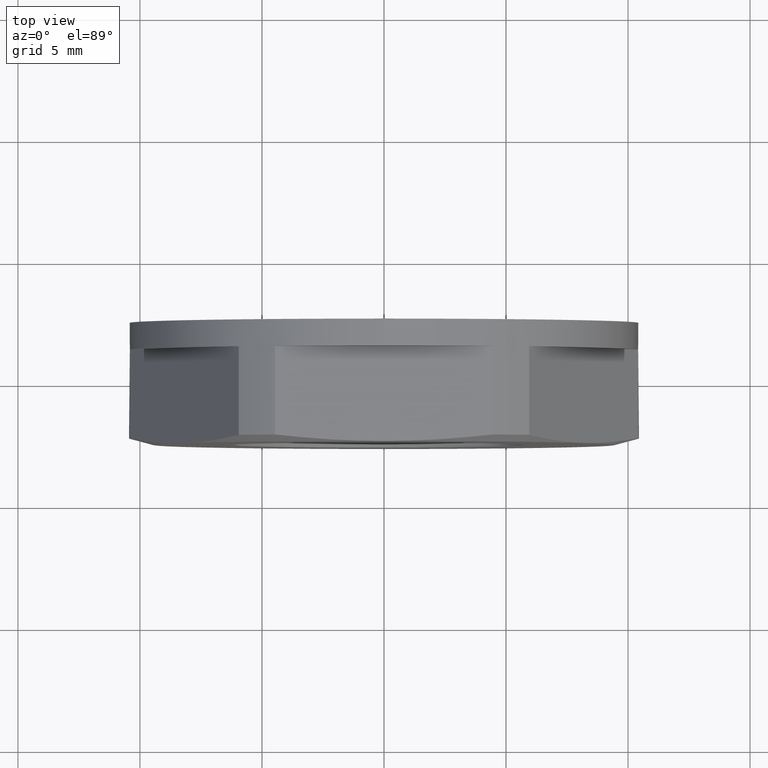
[diagram: clean part render]
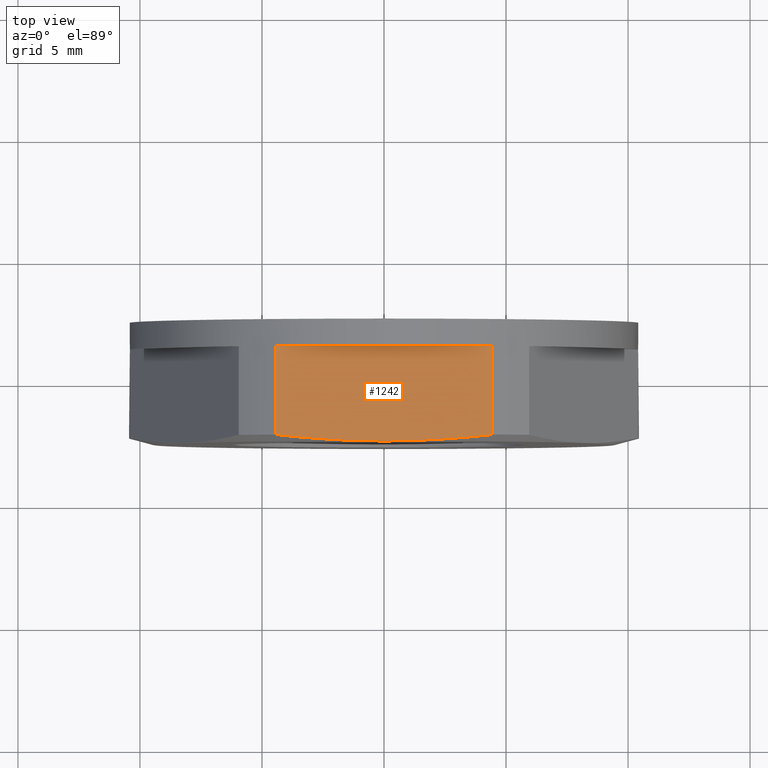
[diagram: same view with one face highlighted and labeled with its STEP entity id]
A machine part, top view. The second image highlights one B-rep face of the part: STEP entity #1242.
In plain terms, the highlighted planar face has unit normal (0, 0, -1).
Its self-contained STEP definition (entity closure, byte-faithful):
#199 = EDGE_LOOP ( 'NONE', ( #1471, #351, #1750, #531, #1604 ) ) ;
#226 = VERTEX_POINT ( 'NONE', #1411 ) ;
#299 = CARTESIAN_POINT ( 'NONE',  ( 0.0000000000000000000, 2.409999999999999698, 9.449999999999999289 ) ) ;
#336 = CARTESIAN_POINT ( 'NONE',  ( 4.460941604639105051, 34.48836049169644724, 9.449999999999999289 ) ) ;
#348 = B_SPLINE_CURVE_WITH_KNOTS ( 'NONE', 3,
 ( #299, #1666, #973, #1834, #1138, #643 ),
 .UNSPECIFIED., .F., .F.,
 ( 4, 2, 4 ),
 ( 0.02329190791741629976, 0.02552634913787470844, 0.02776079035833311712 ),
 .UNSPECIFIED. ) ;
#351 = ORIENTED_EDGE ( 'NONE', *, *, #759, .F. ) ;
#466 = VECTOR ( 'NONE', #1006, 1000.000000000000000 ) ;
#470 = CARTESIAN_POINT ( 'NONE',  ( 4.460941604639105051, 2.677949192431114955, 9.449999999999999289 ) ) ;
#488 = FACE_OUTER_BOUND ( 'NONE', #199, .T. ) ;
#531 = ORIENTED_EDGE ( 'NONE', *, *, #2116, .T. ) ;
#535 = CARTESIAN_POINT ( 'NONE',  ( 1.490880979971979547, 2.410000000000000142, 9.449999999999999289 ) ) ;
#555 = EDGE_CURVE ( 'NONE', #1703, #226, #1782, .T. ) ;
#643 = CARTESIAN_POINT ( 'NONE',  ( -4.460941604639105051, 2.677949192431114955, 9.449999999999999289 ) ) ;
#715 = CARTESIAN_POINT ( 'NONE',  ( 4.460941604639105051, 6.309999999999999609, 9.449999999999999289 ) ) ;
#759 = EDGE_CURVE ( 'NONE', #1703, #1992, #1856, .T. ) ;
#884 = EDGE_CURVE ( 'NONE', #1078, #1615, #348, .T. ) ;
#894 = CARTESIAN_POINT ( 'NONE',  ( 0.0000000000000000000, 2.409999999999999698, 9.449999999999999289 ) ) ;
#973 = CARTESIAN_POINT ( 'NONE',  ( -1.485064377453213069, 2.433721300150043287, 9.449999999999999289 ) ) ;
#1002 = CARTESIAN_POINT ( 'NONE',  ( -4.460941604639105051, 34.48836049169644724, 9.449999999999999289 ) ) ;
#1006 = DIRECTION ( 'NONE',  ( 0.0000000000000000000, -1.000000000000000000, 0.0000000000000000000 ) ) ;
#1015 = CARTESIAN_POINT ( 'NONE',  ( 4.460941604639105051, 2.677949192431114955, 9.449999999999999289 ) ) ;
#1028 = CARTESIAN_POINT ( 'NONE',  ( 2.977470735327108375, 2.508264868360941424, 9.449999999999999289 ) ) ;
#1078 = VERTEX_POINT ( 'NONE', #894 ) ;
#1129 = CARTESIAN_POINT ( 'NONE',  ( -4.460941604639105051, 34.48836049169644724, 9.449999999999999289 ) ) ;
#1138 = CARTESIAN_POINT ( 'NONE',  ( -3.719023987172681345, 2.593086191721213130, 9.450000000000001066 ) ) ;
#1141 = DIRECTION ( 'NONE',  ( 0.0000000000000000000, -1.000000000000000000, 0.0000000000000000000 ) ) ;
#1180 = DIRECTION ( 'NONE',  ( -1.000000000000000000, 0.0000000000000000000, 0.0000000000000000000 ) ) ;
#1205 = CARTESIAN_POINT ( 'NONE',  ( 0.0000000000000000000, 2.409999999999999698, 9.449999999999999289 ) ) ;
#1242 = ADVANCED_FACE ( 'NONE', ( #488 ), #2033, .F. ) ;
#1411 = CARTESIAN_POINT ( 'NONE',  ( -4.460941604639105051, 6.309999999999999609, 9.449999999999999289 ) ) ;
#1471 = ORIENTED_EDGE ( 'NONE', *, *, #1552, .F. ) ;
#1552 = EDGE_CURVE ( 'NONE', #1992, #1078, #1715, .T. ) ;
#1561 = VECTOR ( 'NONE', #1141, 1000.000000000000000 ) ;
#1601 = CARTESIAN_POINT ( 'NONE',  ( -4.460941604639105051, 6.309999999999999609, 9.449999999999999289 ) ) ;
#1604 = ORIENTED_EDGE ( 'NONE', *, *, #884, .F. ) ;
#1615 = VERTEX_POINT ( 'NONE', #1723 ) ;
#1644 = VECTOR ( 'NONE', #2117, 1000.000000000000000 ) ;
#1666 = CARTESIAN_POINT ( 'NONE',  ( -0.7420142344014981628, 2.409999999999999698, 9.449999999999997513 ) ) ;
#1681 = AXIS2_PLACEMENT_3D ( 'NONE', #1002, #1695, #1180 ) ;
#1695 = DIRECTION ( 'NONE',  ( 0.0000000000000000000, 0.0000000000000000000, -1.000000000000000000 ) ) ;
#1703 = VERTEX_POINT ( 'NONE', #715 ) ;
#1709 = LINE ( 'NONE', #1129, #1561 ) ;
#1715 = B_SPLINE_CURVE_WITH_KNOTS ( 'NONE', 3,
 ( #1015, #1028, #535, #1205 ),
 .UNSPECIFIED., .F., .F.,
 ( 4, 4 ),
 ( 0.01880239038257573020, 0.02329190791741629976 ),
 .UNSPECIFIED. ) ;
#1723 = CARTESIAN_POINT ( 'NONE',  ( -4.460941604639105051, 2.677949192431114955, 9.449999999999999289 ) ) ;
#1750 = ORIENTED_EDGE ( 'NONE', *, *, #555, .T. ) ;
#1782 = LINE ( 'NONE', #1601, #1644 ) ;
#1834 = CARTESIAN_POINT ( 'NONE',  ( -2.973090280553778886, 2.525258656057692619, 9.449999999999999289 ) ) ;
#1856 = LINE ( 'NONE', #336, #466 ) ;
#1992 = VERTEX_POINT ( 'NONE', #470 ) ;
#2033 = PLANE ( 'NONE',  #1681 ) ;
#2116 = EDGE_CURVE ( 'NONE', #226, #1615, #1709, .T. ) ;
#2117 = DIRECTION ( 'NONE',  ( -1.000000000000000000, 0.0000000000000000000, 0.0000000000000000000 ) ) ;